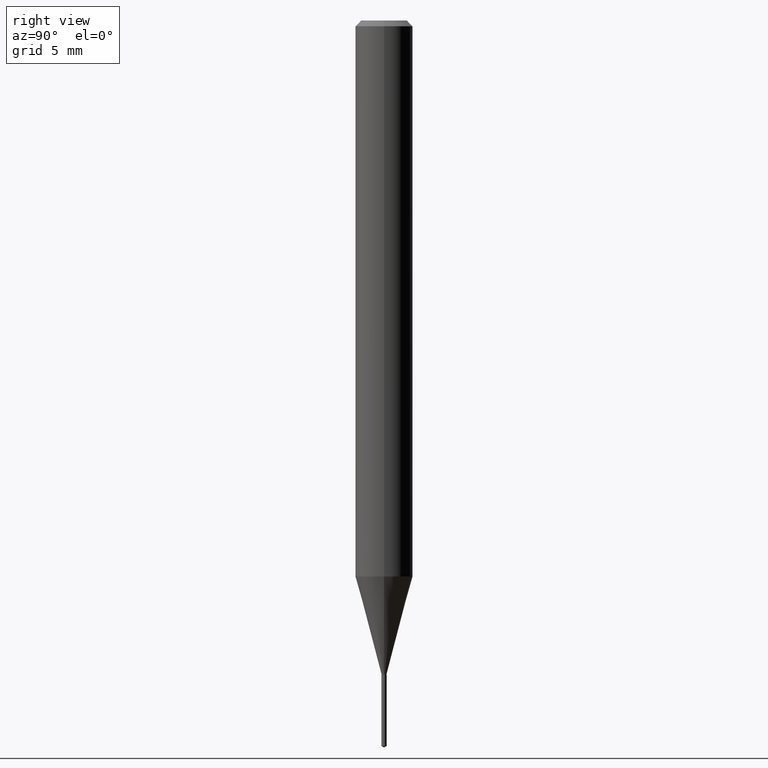
[diagram: clean part render]
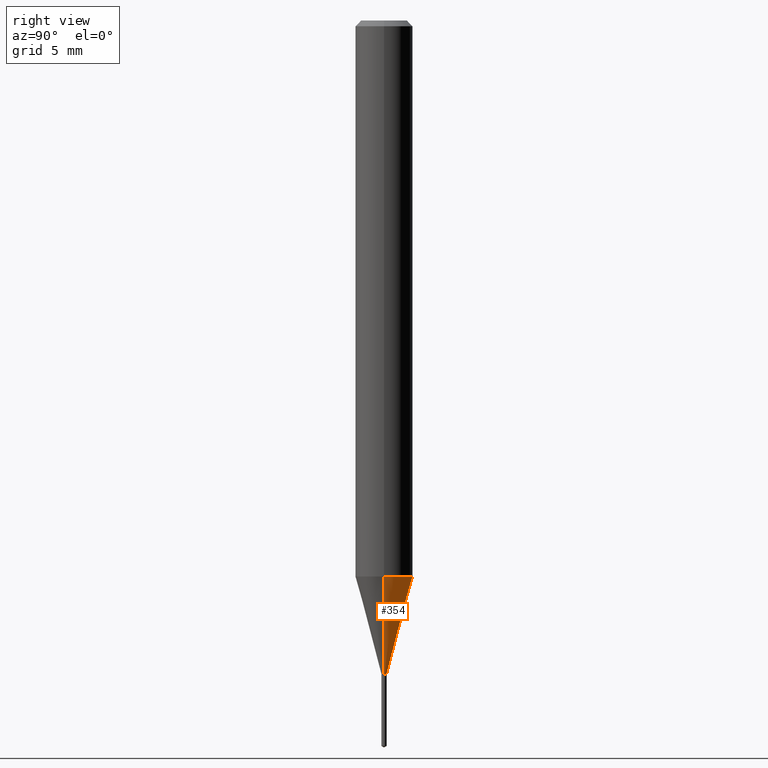
[diagram: same view with one face highlighted and labeled with its STEP entity id]
A machine part, right view. The second image highlights one B-rep face of the part: STEP entity #354.
In plain terms, the highlighted conical surface has half-angle 15 deg.
Its self-contained STEP definition (entity closure, byte-faithful):
#23 = AXIS2_PLACEMENT_3D ( 'NONE', #120, #430, #391 ) ;
#43 = VERTEX_POINT ( 'NONE', #94 ) ;
#51 = VERTEX_POINT ( 'NONE', #286 ) ;
#53 = LINE ( 'NONE', #129, #168 ) ;
#88 = FACE_OUTER_BOUND ( 'NONE', #262, .T. ) ;
#94 = CARTESIAN_POINT ( 'NONE',  ( 0.05905000000000013710, -4.407653964652056153E-15, -1.144302269093172786 ) ) ;
#109 = ORIENTED_EDGE ( 'NONE', *, *, #165, .F. ) ;
#110 = DIRECTION ( 'NONE',  ( 0.2588190451025213501, 1.565188264969621968E-15, 0.9659258262890682012 ) ) ;
#116 = CARTESIAN_POINT ( 'NONE',  ( 0.005300000000000000891, -4.732702954801883924E-15, -1.344899999999999984 ) ) ;
#120 = CARTESIAN_POINT ( 'NONE',  ( 3.288910997438389961E-29, -4.695693252610146470E-15, -1.344899999999999984 ) ) ;
#121 = CIRCLE ( 'NONE', #201, 0.05905000000000013710 ) ;
#129 = CARTESIAN_POINT ( 'NONE',  ( -0.005300000000000000891, -4.658034487614861364E-15, -1.344899999999999984 ) ) ;
#153 = VERTEX_POINT ( 'NONE', #232 ) ;
#165 = EDGE_CURVE ( 'NONE', #308, #43, #261, .T. ) ;
#168 = VECTOR ( 'NONE', #198, 39.37007874015747433 ) ;
#174 = AXIS2_PLACEMENT_3D ( 'NONE', #314, #400, #239 ) ;
#189 = CIRCLE ( 'NONE', #23, 0.005300000000000000891 ) ;
#198 = DIRECTION ( 'NONE',  ( -0.2588190451025213501, 5.211531920934551042E-15, 0.9659258262890682012 ) ) ;
#201 = AXIS2_PLACEMENT_3D ( 'NONE', #357, #318, #434 ) ;
#212 = VECTOR ( 'NONE', #110, 39.37007874015747433 ) ;
#218 = ORIENTED_EDGE ( 'NONE', *, *, #294, .F. ) ;
#232 = CARTESIAN_POINT ( 'NONE',  ( -0.05905000000000013710, -3.575734533068340951E-15, -1.144302269093172786 ) ) ;
#239 = DIRECTION ( 'NONE',  ( 1.000000000000000000, -6.982962677686350330E-15, 0.000000000000000000 ) ) ;
#261 = LINE ( 'NONE', #116, #212 ) ;
#262 = EDGE_LOOP ( 'NONE', ( #370, #382, #218, #109 ) ) ;
#271 = CARTESIAN_POINT ( 'NONE',  ( 0.005300000000000000891, -4.732702954801883924E-15, -1.344899999999999984 ) ) ;
#277 = EDGE_CURVE ( 'NONE', #308, #51, #189, .T. ) ;
#283 = CONICAL_SURFACE ( 'NONE', #174, 0.005300000000000000891, 0.2617993877991500740 ) ;
#286 = CARTESIAN_POINT ( 'NONE',  ( -0.005300000000000000891, -4.659954802351225412E-15, -1.344899999999999984 ) ) ;
#294 = EDGE_CURVE ( 'NONE', #43, #153, #121, .T. ) ;
#308 = VERTEX_POINT ( 'NONE', #271 ) ;
#314 = CARTESIAN_POINT ( 'NONE',  ( 3.288910997438389961E-29, -4.695693252610146470E-15, -1.344899999999999984 ) ) ;
#318 = DIRECTION ( 'NONE',  ( -2.445468806185136597E-29, 3.491481338843145583E-15, 1.000000000000000000 ) ) ;
#354 = ADVANCED_FACE ( 'NONE', ( #88 ), #283, .T. ) ;
#357 = CARTESIAN_POINT ( 'NONE',  ( 2.798355503914224078E-29, -3.995310018534680444E-15, -1.144302269093172786 ) ) ;
#370 = ORIENTED_EDGE ( 'NONE', *, *, #277, .T. ) ;
#382 = ORIENTED_EDGE ( 'NONE', *, *, #383, .T. ) ;
#383 = EDGE_CURVE ( 'NONE', #51, #153, #53, .T. ) ;
#391 = DIRECTION ( 'NONE',  ( 1.000000000000000000, -6.982962677686350330E-15, 0.000000000000000000 ) ) ;
#400 = DIRECTION ( 'NONE',  ( -2.445468806185136597E-29, 3.491481338843145583E-15, 1.000000000000000000 ) ) ;
#430 = DIRECTION ( 'NONE',  ( -2.445468806185136597E-29, 3.491481338843145583E-15, 1.000000000000000000 ) ) ;
#434 = DIRECTION ( 'NONE',  ( 1.000000000000000000, -6.982962677686264344E-15, 0.000000000000000000 ) ) ;